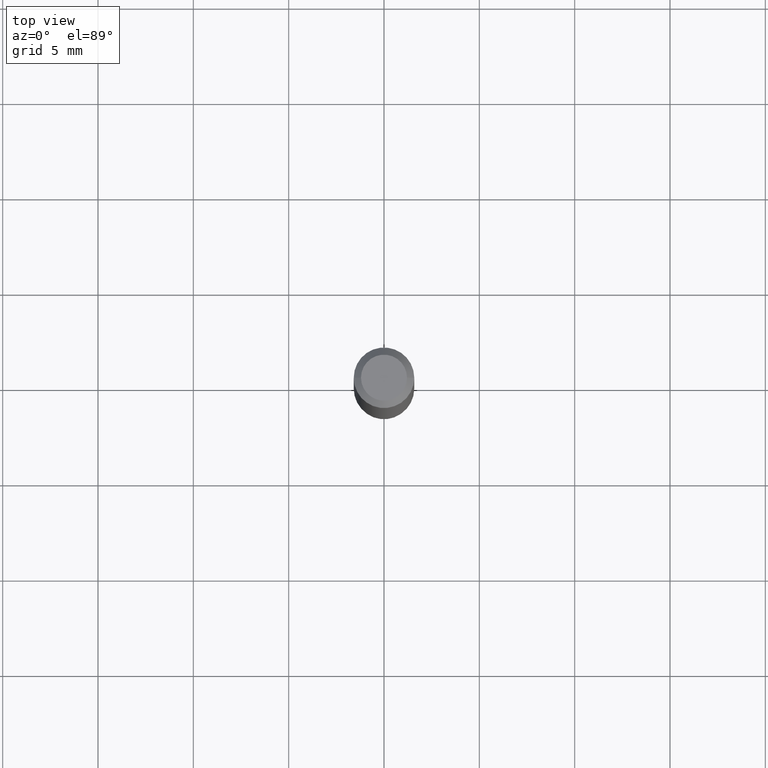
[diagram: clean part render]
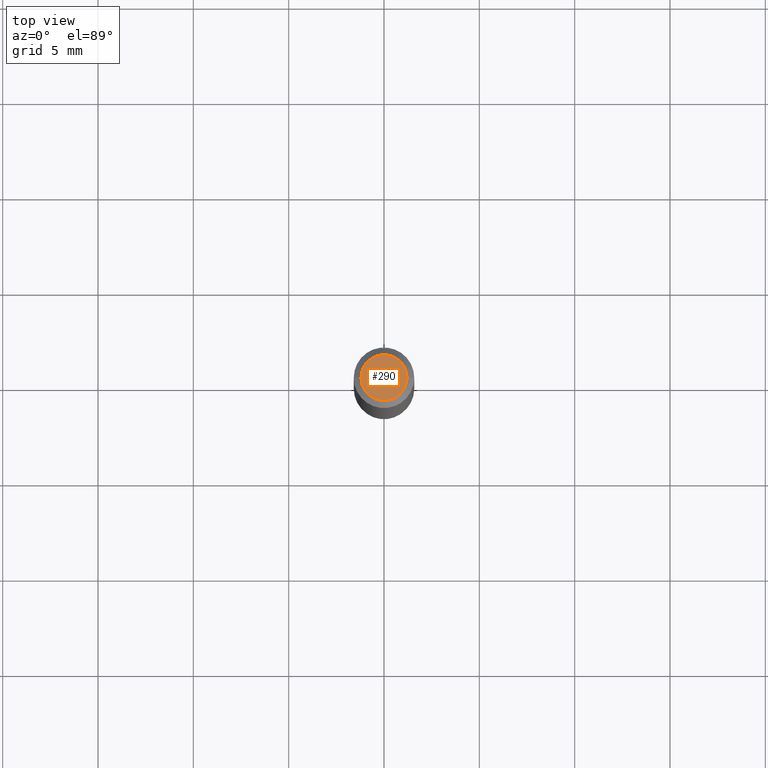
[diagram: same view with one face highlighted and labeled with its STEP entity id]
A machine part, top view. The second image highlights one B-rep face of the part: STEP entity #290.
In plain terms, the highlighted planar face has unit normal (0, -0, -1).
Its self-contained STEP definition (entity closure, byte-faithful):
#3 = EDGE_CURVE ( 'NONE', #418, #453, #96, .T. ) ;
#11 = CARTESIAN_POINT ( 'NONE',  ( 3.316907271900976589E-16, 0.04750000000000000749, -2.925296391183627249E-17 ) ) ;
#14 = CARTESIAN_POINT ( 'NONE',  ( -6.680649051745406845E-45, 9.538196290434862081E-31, 2.731847993664263218E-16 ) ) ;
#55 = DIRECTION ( 'NONE',  ( 2.438088387897960049E-29, -3.491481338843145188E-15, -1.000000000000000000 ) ) ;
#69 = CARTESIAN_POINT ( 'NONE',  ( 0.04750000000000000749, -4.035134999187568762E-16, 2.731847993664288856E-16 ) ) ;
#70 = DIRECTION ( 'NONE',  ( -2.445468806185136597E-29, 3.491481338843145583E-15, 1.000000000000000000 ) ) ;
#89 = AXIS2_PLACEMENT_3D ( 'NONE', #11, #55, #415 ) ;
#90 = CARTESIAN_POINT ( 'NONE',  ( -0.04750000000000000749, 3.578768372314221353E-16, 2.731847993664239060E-16 ) ) ;
#92 = DIRECTION ( 'NONE',  ( 1.000000000000000000, -6.982962677686266711E-15, 4.852736867747365086E-29 ) ) ;
#96 = CIRCLE ( 'NONE', #123, 0.04750000000000000749 ) ;
#123 = AXIS2_PLACEMENT_3D ( 'NONE', #149, #70, #345 ) ;
#132 = PLANE ( 'NONE',  #89 ) ;
#149 = CARTESIAN_POINT ( 'NONE',  ( -6.680649051745406845E-45, 9.538196290434862081E-31, 2.731847993664263218E-16 ) ) ;
#208 = DIRECTION ( 'NONE',  ( -2.445468806185136597E-29, 3.491481338843145583E-15, 1.000000000000000000 ) ) ;
#290 = ADVANCED_FACE ( 'NONE', ( #363 ), #132, .F. ) ;
#298 = ORIENTED_EDGE ( 'NONE', *, *, #379, .T. ) ;
#329 = ORIENTED_EDGE ( 'NONE', *, *, #3, .T. ) ;
#345 = DIRECTION ( 'NONE',  ( 1.000000000000000000, -6.982962677686266711E-15, 4.852736867747365086E-29 ) ) ;
#363 = FACE_OUTER_BOUND ( 'NONE', #405, .T. ) ;
#379 = EDGE_CURVE ( 'NONE', #453, #418, #468, .T. ) ;
#405 = EDGE_LOOP ( 'NONE', ( #329, #298 ) ) ;
#413 = AXIS2_PLACEMENT_3D ( 'NONE', #14, #208, #92 ) ;
#415 = DIRECTION ( 'NONE',  ( -1.000000000000000000, 6.982962677686265922E-15, -4.876176775795935793E-29 ) ) ;
#418 = VERTEX_POINT ( 'NONE', #90 ) ;
#453 = VERTEX_POINT ( 'NONE', #69 ) ;
#468 = CIRCLE ( 'NONE', #413, 0.04750000000000000749 ) ;